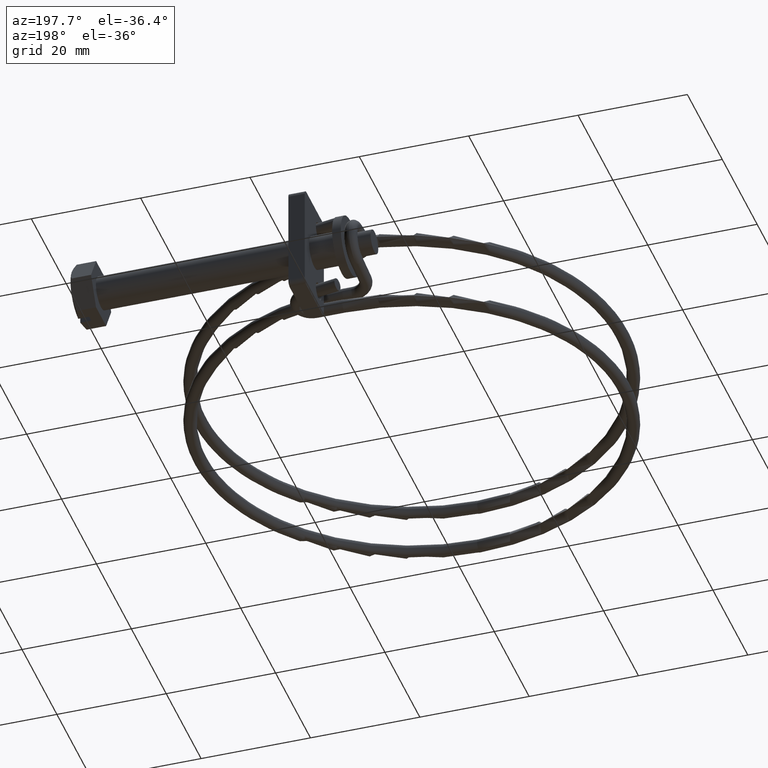
[diagram: clean part render]
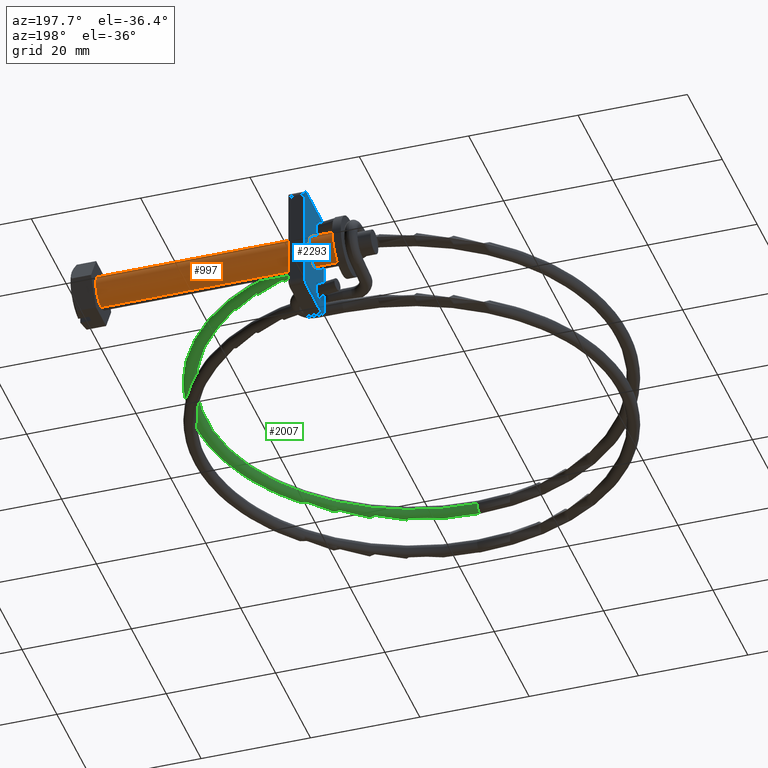
[diagram: same view with three faces highlighted in distinct colors, each labeled with its STEP entity id]
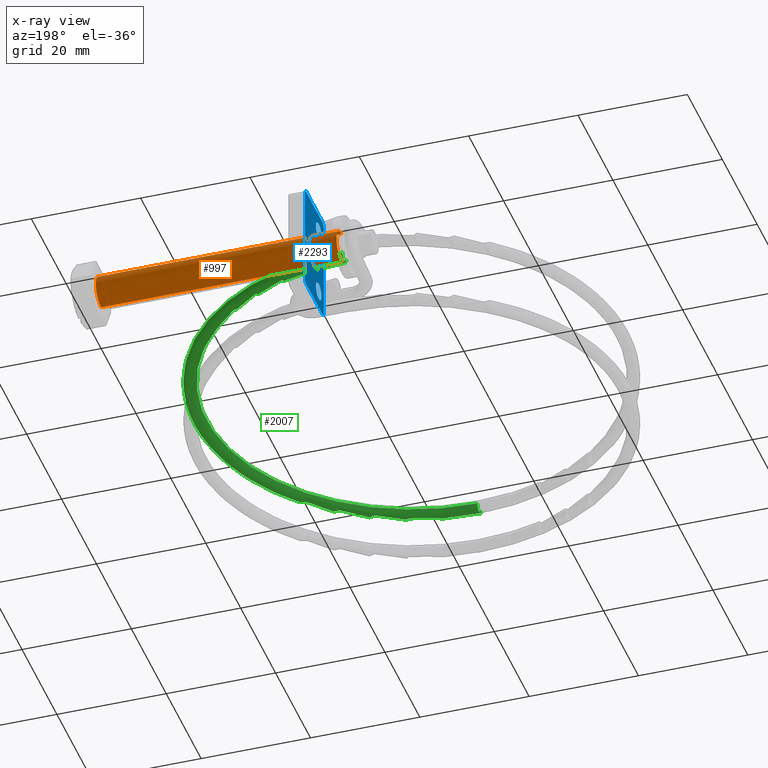
[diagram: x-ray of the same camera — body ghosted, the three highlighted faces saturated]
A machine part, auxiliary view with three faces highlighted in distinct colors.
The next image is the same camera in x-ray (body ghosted, the three faces saturated) — at least one of them is partly hidden behind the body in this view.
Their STEP definitions:

[orange] entity #997 — the highlighted cylindrical surface (edge-blend (fillet) strip) has radius 3 mm, axis along (1, 0, 0).
#4 = VERTEX_POINT ( 'NONE', #2601 ) ;
#38 = CARTESIAN_POINT ( 'NONE',  ( -44.00000000000000000, 3.673940397442060400E-016, 3.000000000000000400 ) ) ;
#106 = VERTEX_POINT ( 'NONE', #596 ) ;
#107 = DIRECTION ( 'NONE',  ( 1.000000000000000000, 0.0000000000000000000, 0.0000000000000000000 ) ) ;
#168 = VERTEX_POINT ( 'NONE', #1413 ) ;
#537 = CARTESIAN_POINT ( 'NONE',  ( -44.00000000000000000, 0.0000000000000000000, 0.0000000000000000000 ) ) ;
#570 = AXIS2_PLACEMENT_3D ( 'NONE', #2936, #2446, #2693 ) ;
#596 = CARTESIAN_POINT ( 'NONE',  ( 0.0000000000000000000, 3.673940397442060400E-016, 3.000000000000000400 ) ) ;
#776 = EDGE_CURVE ( 'NONE', #4, #1385, #1177, .T. ) ;
#782 = DIRECTION ( 'NONE',  ( 0.0000000000000000000, 0.0000000000000000000, 1.000000000000000000 ) ) ;
#798 = VECTOR ( 'NONE', #2555, 1000.000000000000000 ) ;
#813 = LINE ( 'NONE', #1339, #798 ) ;
#830 = VECTOR ( 'NONE', #1440, 1000.000000000000000 ) ;
#852 = CIRCLE ( 'NONE', #2660, 3.000000000000000400 ) ;
#944 = EDGE_CURVE ( 'NONE', #1385, #106, #813, .T. ) ;
#997 = ADVANCED_FACE ( 'NONE', ( #1152 ), #1698, .T. ) ;
#1152 = FACE_OUTER_BOUND ( 'NONE', #2119, .T. ) ;
#1177 = CIRCLE ( 'NONE', #2832, 3.000000000000000400 ) ;
#1339 = CARTESIAN_POINT ( 'NONE',  ( -44.00000000000000000, 3.673940397442060400E-016, 3.000000000000000400 ) ) ;
#1385 = VERTEX_POINT ( 'NONE', #38 ) ;
#1413 = CARTESIAN_POINT ( 'NONE',  ( 0.0000000000000000000, 0.0000000000000000000, -3.000000000000000400 ) ) ;
#1440 = DIRECTION ( 'NONE',  ( 1.000000000000000000, 0.0000000000000000000, 0.0000000000000000000 ) ) ;
#1447 = LINE ( 'NONE', #2898, #830 ) ;
#1541 = CARTESIAN_POINT ( 'NONE',  ( 0.0000000000000000000, 0.0000000000000000000, 0.0000000000000000000 ) ) ;
#1632 = ORIENTED_EDGE ( 'NONE', *, *, #2012, .F. ) ;
#1698 = CYLINDRICAL_SURFACE ( 'NONE', #570, 3.000000000000000400 ) ;
#1777 = DIRECTION ( 'NONE',  ( 0.0000000000000000000, 0.0000000000000000000, -1.000000000000000000 ) ) ;
#1874 = ORIENTED_EDGE ( 'NONE', *, *, #776, .T. ) ;
#1944 = ORIENTED_EDGE ( 'NONE', *, *, #3059, .F. ) ;
#2012 = EDGE_CURVE ( 'NONE', #4, #168, #1447, .T. ) ;
#2119 = EDGE_LOOP ( 'NONE', ( #1874, #2284, #1944, #1632 ) ) ;
#2218 = DIRECTION ( 'NONE',  ( 1.000000000000000000, -0.0000000000000000000, -0.0000000000000000000 ) ) ;
#2284 = ORIENTED_EDGE ( 'NONE', *, *, #944, .T. ) ;
#2446 = DIRECTION ( 'NONE',  ( 1.000000000000000000, 0.0000000000000000000, 0.0000000000000000000 ) ) ;
#2555 = DIRECTION ( 'NONE',  ( 1.000000000000000000, 0.0000000000000000000, 0.0000000000000000000 ) ) ;
#2601 = CARTESIAN_POINT ( 'NONE',  ( -44.00000000000000000, 0.0000000000000000000, -3.000000000000000400 ) ) ;
#2660 = AXIS2_PLACEMENT_3D ( 'NONE', #1541, #107, #1777 ) ;
#2693 = DIRECTION ( 'NONE',  ( 0.0000000000000000000, 0.0000000000000000000, -1.000000000000000000 ) ) ;
#2832 = AXIS2_PLACEMENT_3D ( 'NONE', #537, #2218, #782 ) ;
#2898 = CARTESIAN_POINT ( 'NONE',  ( -44.00000000000000000, 0.0000000000000000000, -3.000000000000000400 ) ) ;
#2936 = CARTESIAN_POINT ( 'NONE',  ( -44.00000000000000000, 0.0000000000000000000, 0.0000000000000000000 ) ) ;
#3059 = EDGE_CURVE ( 'NONE', #168, #106, #852, .T. ) ;

[blue] entity #2293 — the highlighted planar face has unit normal (1, 0, 0).
#27 = ORIENTED_EDGE ( 'NONE', *, *, #1421, .T. ) ;
#43 = VERTEX_POINT ( 'NONE', #1394 ) ;
#48 = CARTESIAN_POINT ( 'NONE',  ( -1.500000000000000000, -2.499999999999999100, -4.899999999999998600 ) ) ;
#64 = CARTESIAN_POINT ( 'NONE',  ( -1.500000000000000000, -2.499999999999999100, 4.899999999999999500 ) ) ;
#73 = ORIENTED_EDGE ( 'NONE', *, *, #601, .F. ) ;
#99 = DIRECTION ( 'NONE',  ( 0.0000000000000000000, 0.0000000000000000000, -1.000000000000000000 ) ) ;
#140 = CARTESIAN_POINT ( 'NONE',  ( -1.500000000000000000, 4.500000000000000000, -9.000000000000003600 ) ) ;
#148 = EDGE_CURVE ( 'NONE', #43, #622, #1555, .T. ) ;
#200 = AXIS2_PLACEMENT_3D ( 'NONE', #2855, #1397, #3098 ) ;
#207 = EDGE_CURVE ( 'NONE', #2409, #2331, #1455, .T. ) ;
#208 = EDGE_CURVE ( 'NONE', #2860, #1000, #261, .T. ) ;
#218 = DIRECTION ( 'NONE',  ( 0.0000000000000000000, 0.0000000000000000000, -1.000000000000000000 ) ) ;
#236 = DIRECTION ( 'NONE',  ( 0.0000000000000000000, 0.0000000000000000000, -1.000000000000000000 ) ) ;
#240 = FACE_BOUND ( 'NONE', #2893, .T. ) ;
#242 = CARTESIAN_POINT ( 'NONE',  ( -1.500000000000000000, -2.499999999999999100, -6.500000000000000000 ) ) ;
#261 = CIRCLE ( 'NONE', #2127, 1.599999999999999900 ) ;
#280 = LINE ( 'NONE', #1559, #365 ) ;
#297 = CARTESIAN_POINT ( 'NONE',  ( -1.500000000000000000, -2.499999999999999100, 8.099999999999999600 ) ) ;
#350 = ORIENTED_EDGE ( 'NONE', *, *, #208, .T. ) ;
#365 = VECTOR ( 'NONE', #2266, 1000.000000000000000 ) ;
#375 = AXIS2_PLACEMENT_3D ( 'NONE', #1857, #3089, #1636 ) ;
#377 = DIRECTION ( 'NONE',  ( 0.0000000000000000000, 0.0000000000000000000, -1.000000000000000000 ) ) ;
#381 = CARTESIAN_POINT ( 'NONE',  ( -1.500000000000000000, 0.0000000000000000000, -3.000000000000000400 ) ) ;
#430 = AXIS2_PLACEMENT_3D ( 'NONE', #3113, #1653, #218 ) ;
#478 = DIRECTION ( 'NONE',  ( 0.0000000000000000000, 0.0000000000000000000, -1.000000000000000000 ) ) ;
#482 = ORIENTED_EDGE ( 'NONE', *, *, #1832, .F. ) ;
#521 = AXIS2_PLACEMENT_3D ( 'NONE', #140, #1811, #377 ) ;
#544 = DIRECTION ( 'NONE',  ( 1.000000000000000000, 0.0000000000000000000, 0.0000000000000000000 ) ) ;
#601 = EDGE_CURVE ( 'NONE', #759, #2585, #2339, .T. ) ;
#618 = EDGE_CURVE ( 'NONE', #1439, #2331, #280, .T. ) ;
#622 = VERTEX_POINT ( 'NONE', #843 ) ;
#640 = DIRECTION ( 'NONE',  ( 1.000000000000000000, 0.0000000000000000000, 0.0000000000000000000 ) ) ;
#673 = DIRECTION ( 'NONE',  ( -0.0000000000000000000, 1.000000000000000000, -0.0000000000000000000 ) ) ;
#703 = CARTESIAN_POINT ( 'NONE',  ( -1.500000000000000000, -4.499999999999999100, -10.00000000000000000 ) ) ;
#759 = VERTEX_POINT ( 'NONE', #3116 ) ;
#770 = CARTESIAN_POINT ( 'NONE',  ( -1.500000000000000000, -4.499999999999999100, 10.00000000000000000 ) ) ;
#774 = CARTESIAN_POINT ( 'NONE',  ( -1.500000000000000000, 0.0000000000000000000, 0.0000000000000000000 ) ) ;
#788 = CARTESIAN_POINT ( 'NONE',  ( -1.500000000000000000, -5.500000000000000000, 9.000000000000001800 ) ) ;
#820 = VECTOR ( 'NONE', #673, 1000.000000000000000 ) ;
#843 = CARTESIAN_POINT ( 'NONE',  ( -1.500000000000000000, 4.500000000000000000, -10.00000000000000000 ) ) ;
#889 = FACE_BOUND ( 'NONE', #1558, .T. ) ;
#910 = PLANE ( 'NONE',  #375 ) ;
#914 = ORIENTED_EDGE ( 'NONE', *, *, #1324, .T. ) ;
#925 = CARTESIAN_POINT ( 'NONE',  ( -1.500000000000000000, -5.500000000000000000, -9.000000000000003600 ) ) ;
#931 = CIRCLE ( 'NONE', #1382, 1.599999999999999900 ) ;
#938 = EDGE_CURVE ( 'NONE', #1000, #2860, #1526, .T. ) ;
#967 = VERTEX_POINT ( 'NONE', #381 ) ;
#1000 = VERTEX_POINT ( 'NONE', #48 ) ;
#1024 = DIRECTION ( 'NONE',  ( 0.0000000000000000000, 0.0000000000000000000, -1.000000000000000000 ) ) ;
#1079 = ORIENTED_EDGE ( 'NONE', *, *, #2301, .T. ) ;
#1081 = CARTESIAN_POINT ( 'NONE',  ( -1.500000000000000000, 5.500000000000000000, 10.00000000000000000 ) ) ;
#1132 = ORIENTED_EDGE ( 'NONE', *, *, #148, .T. ) ;
#1197 = CIRCLE ( 'NONE', #2550, 3.000000000000000400 ) ;
#1200 = CARTESIAN_POINT ( 'NONE',  ( -1.500000000000000000, -4.499999999999999100, -9.000000000000001800 ) ) ;
#1274 = ORIENTED_EDGE ( 'NONE', *, *, #938, .T. ) ;
#1302 = ORIENTED_EDGE ( 'NONE', *, *, #1978, .T. ) ;
#1324 = EDGE_CURVE ( 'NONE', #759, #1686, #2261, .T. ) ;
#1329 = ORIENTED_EDGE ( 'NONE', *, *, #618, .F. ) ;
#1382 = AXIS2_PLACEMENT_3D ( 'NONE', #2076, #640, #2317 ) ;
#1394 = CARTESIAN_POINT ( 'NONE',  ( -1.500000000000000000, 5.500000000000000000, -9.000000000000003600 ) ) ;
#1397 = DIRECTION ( 'NONE',  ( -1.000000000000000000, -0.0000000000000000000, -0.0000000000000000000 ) ) ;
#1409 = VERTEX_POINT ( 'NONE', #297 ) ;
#1421 = EDGE_CURVE ( 'NONE', #2838, #967, #1197, .T. ) ;
#1432 = DIRECTION ( 'NONE',  ( 0.0000000000000000000, 0.0000000000000000000, -1.000000000000000000 ) ) ;
#1438 = CIRCLE ( 'NONE', #200, 1.000000000000000900 ) ;
#1439 = VERTEX_POINT ( 'NONE', #788 ) ;
#1441 = AXIS2_PLACEMENT_3D ( 'NONE', #2757, #1665, #236 ) ;
#1455 = CIRCLE ( 'NONE', #1965, 1.000000000000000900 ) ;
#1500 = VECTOR ( 'NONE', #2028, 1000.000000000000000 ) ;
#1526 = CIRCLE ( 'NONE', #2884, 1.599999999999999900 ) ;
#1555 = CIRCLE ( 'NONE', #521, 0.9999999999999991100 ) ;
#1558 = EDGE_LOOP ( 'NONE', ( #3057, #27 ) ) ;
#1559 = CARTESIAN_POINT ( 'NONE',  ( -1.500000000000000000, -5.500000000000000000, 10.00000000000000000 ) ) ;
#1589 = DIRECTION ( 'NONE',  ( 1.000000000000000000, 0.0000000000000000000, 0.0000000000000000000 ) ) ;
#1636 = DIRECTION ( 'NONE',  ( 0.0000000000000000000, 0.0000000000000000000, -1.000000000000000000 ) ) ;
#1653 = DIRECTION ( 'NONE',  ( -1.000000000000000000, -0.0000000000000000000, -0.0000000000000000000 ) ) ;
#1665 = DIRECTION ( 'NONE',  ( 1.000000000000000000, 0.0000000000000000000, 0.0000000000000000000 ) ) ;
#1686 = VERTEX_POINT ( 'NONE', #2984 ) ;
#1709 = EDGE_CURVE ( 'NONE', #967, #2838, #2537, .T. ) ;
#1755 = ORIENTED_EDGE ( 'NONE', *, *, #2294, .F. ) ;
#1811 = DIRECTION ( 'NONE',  ( -1.000000000000000000, -0.0000000000000000000, -0.0000000000000000000 ) ) ;
#1832 = EDGE_CURVE ( 'NONE', #43, #1686, #2128, .T. ) ;
#1857 = CARTESIAN_POINT ( 'NONE',  ( -1.500000000000000000, 0.0000000000000000000, 0.0000000000000000000 ) ) ;
#1908 = DIRECTION ( 'NONE',  ( 1.000000000000000000, 0.0000000000000000000, 0.0000000000000000000 ) ) ;
#1965 = AXIS2_PLACEMENT_3D ( 'NONE', #1200, #2892, #1432 ) ;
#1975 = CARTESIAN_POINT ( 'NONE',  ( -1.500000000000000000, 0.0000000000000000000, 0.0000000000000000000 ) ) ;
#1978 = EDGE_CURVE ( 'NONE', #3007, #1409, #2157, .T. ) ;
#2028 = DIRECTION ( 'NONE',  ( -0.0000000000000000000, -0.0000000000000000000, 1.000000000000000000 ) ) ;
#2076 = CARTESIAN_POINT ( 'NONE',  ( -1.500000000000000000, -2.499999999999999100, 6.500000000000000000 ) ) ;
#2082 = FACE_OUTER_BOUND ( 'NONE', #3051, .T. ) ;
#2112 = CARTESIAN_POINT ( 'NONE',  ( -1.500000000000000000, 5.500000000000000000, -10.00000000000000000 ) ) ;
#2114 = ORIENTED_EDGE ( 'NONE', *, *, #207, .T. ) ;
#2127 = AXIS2_PLACEMENT_3D ( 'NONE', #242, #1908, #478 ) ;
#2128 = LINE ( 'NONE', #2521, #1500 ) ;
#2136 = CARTESIAN_POINT ( 'NONE',  ( -1.500000000000000000, 3.673940397442060400E-016, 3.000000000000000400 ) ) ;
#2157 = CIRCLE ( 'NONE', #1441, 1.599999999999999900 ) ;
#2180 = VECTOR ( 'NONE', #2771, 1000.000000000000000 ) ;
#2212 = EDGE_CURVE ( 'NONE', #1409, #3007, #931, .T. ) ;
#2223 = DIRECTION ( 'NONE',  ( 0.0000000000000000000, 0.0000000000000000000, -1.000000000000000000 ) ) ;
#2261 = CIRCLE ( 'NONE', #430, 1.000000000000000900 ) ;
#2266 = DIRECTION ( 'NONE',  ( 0.0000000000000000000, 0.0000000000000000000, -1.000000000000000000 ) ) ;
#2293 = ADVANCED_FACE ( 'NONE', ( #889, #240, #2750, #2082 ), #910, .F. ) ;
#2294 = EDGE_CURVE ( 'NONE', #2409, #622, #2657, .T. ) ;
#2301 = EDGE_CURVE ( 'NONE', #1439, #2585, #1438, .T. ) ;
#2317 = DIRECTION ( 'NONE',  ( 0.0000000000000000000, 0.0000000000000000000, -1.000000000000000000 ) ) ;
#2331 = VERTEX_POINT ( 'NONE', #925 ) ;
#2339 = LINE ( 'NONE', #1081, #2180 ) ;
#2409 = VERTEX_POINT ( 'NONE', #703 ) ;
#2462 = DIRECTION ( 'NONE',  ( 1.000000000000000000, 0.0000000000000000000, 0.0000000000000000000 ) ) ;
#2521 = CARTESIAN_POINT ( 'NONE',  ( -1.500000000000000000, 5.500000000000000000, 10.00000000000000000 ) ) ;
#2537 = CIRCLE ( 'NONE', #2641, 3.000000000000000400 ) ;
#2550 = AXIS2_PLACEMENT_3D ( 'NONE', #1975, #544, #2223 ) ;
#2585 = VERTEX_POINT ( 'NONE', #770 ) ;
#2641 = AXIS2_PLACEMENT_3D ( 'NONE', #774, #2462, #1024 ) ;
#2643 = CARTESIAN_POINT ( 'NONE',  ( -1.500000000000000000, -2.499999999999999100, -8.099999999999999600 ) ) ;
#2657 = LINE ( 'NONE', #2112, #820 ) ;
#2750 = FACE_BOUND ( 'NONE', #3002, .T. ) ;
#2757 = CARTESIAN_POINT ( 'NONE',  ( -1.500000000000000000, -2.499999999999999100, 6.500000000000000000 ) ) ;
#2771 = DIRECTION ( 'NONE',  ( 0.0000000000000000000, -1.000000000000000000, 0.0000000000000000000 ) ) ;
#2809 = ORIENTED_EDGE ( 'NONE', *, *, #2212, .T. ) ;
#2838 = VERTEX_POINT ( 'NONE', #2136 ) ;
#2855 = CARTESIAN_POINT ( 'NONE',  ( -1.500000000000000000, -4.500000000000000000, 9.000000000000001800 ) ) ;
#2860 = VERTEX_POINT ( 'NONE', #2643 ) ;
#2884 = AXIS2_PLACEMENT_3D ( 'NONE', #3038, #1589, #99 ) ;
#2892 = DIRECTION ( 'NONE',  ( -1.000000000000000000, -0.0000000000000000000, -0.0000000000000000000 ) ) ;
#2893 = EDGE_LOOP ( 'NONE', ( #350, #1274 ) ) ;
#2984 = CARTESIAN_POINT ( 'NONE',  ( -1.500000000000000000, 5.500000000000000000, 9.000000000000001800 ) ) ;
#3002 = EDGE_LOOP ( 'NONE', ( #1302, #2809 ) ) ;
#3007 = VERTEX_POINT ( 'NONE', #64 ) ;
#3038 = CARTESIAN_POINT ( 'NONE',  ( -1.500000000000000000, -2.499999999999999100, -6.500000000000000000 ) ) ;
#3051 = EDGE_LOOP ( 'NONE', ( #1755, #2114, #1329, #1079, #73, #914, #482, #1132 ) ) ;
#3057 = ORIENTED_EDGE ( 'NONE', *, *, #1709, .T. ) ;
#3089 = DIRECTION ( 'NONE',  ( 1.000000000000000000, 0.0000000000000000000, 0.0000000000000000000 ) ) ;
#3098 = DIRECTION ( 'NONE',  ( 0.0000000000000000000, 0.0000000000000000000, -1.000000000000000000 ) ) ;
#3113 = CARTESIAN_POINT ( 'NONE',  ( -1.500000000000000000, 4.500000000000000000, 9.000000000000001800 ) ) ;
#3116 = CARTESIAN_POINT ( 'NONE',  ( -1.500000000000000000, 4.500000000000000000, 10.00000000000000000 ) ) ;

[green] entity #2007 — the highlighted toroidal blend (fillet) surface has major radius 38.65 mm and minor (blend) radius 1.15 mm.
#79 = EDGE_CURVE ( 'NONE', #744, #2029, #134, .T. ) ;
#134 = CIRCLE ( 'NONE', #326, 1.149999999999995500 ) ;
#165 = AXIS2_PLACEMENT_3D ( 'NONE', #1987, #558, #2239 ) ;
#326 = AXIS2_PLACEMENT_3D ( 'NONE', #2263, #829, #2528 ) ;
#364 = VERTEX_POINT ( 'NONE', #1599 ) ;
#515 = CIRCLE ( 'NONE', #165, 1.149999999999995500 ) ;
#536 = DIRECTION ( 'NONE',  ( 1.000000000000000000, 1.476770095099055900E-014, -1.207367539279857700E-015 ) ) ;
#558 = DIRECTION ( 'NONE',  ( -1.000000000000000000, -1.489016563090529400E-014, -1.207367539279857700E-015 ) ) ;
#616 = CIRCLE ( 'NONE', #2013, 37.50000000000000000 ) ;
#714 = EDGE_CURVE ( 'NONE', #364, #828, #616, .T. ) ;
#716 = DIRECTION ( 'NONE',  ( -0.0000000000000000000, -0.0000000000000000000, -1.000000000000000000 ) ) ;
#744 = VERTEX_POINT ( 'NONE', #2120 ) ;
#828 = VERTEX_POINT ( 'NONE', #1283 ) ;
#829 = DIRECTION ( 'NONE',  ( -1.000000000000000000, -1.489016563090529400E-014, -1.207367539279857700E-015 ) ) ;
#858 = CIRCLE ( 'NONE', #2006, 39.79999999999999700 ) ;
#873 = VERTEX_POINT ( 'NONE', #2782 ) ;
#896 = ORIENTED_EDGE ( 'NONE', *, *, #2287, .T. ) ;
#958 = CIRCLE ( 'NONE', #3025, 1.149999999999999700 ) ;
#1111 = EDGE_CURVE ( 'NONE', #873, #2029, #858, .T. ) ;
#1154 = CARTESIAN_POINT ( 'NONE',  ( 4.795900000000000500, -7.911643725490995000, 4.200000000000001100 ) ) ;
#1172 = DIRECTION ( 'NONE',  ( -0.0000000000000000000, -0.0000000000000000000, -1.000000000000000000 ) ) ;
#1251 = CARTESIAN_POINT ( 'NONE',  ( 4.795899999999999600, -46.56164372549099500, 4.200000000000001100 ) ) ;
#1254 = ORIENTED_EDGE ( 'NONE', *, *, #1757, .F. ) ;
#1256 = CARTESIAN_POINT ( 'NONE',  ( 4.795899999999998700, -7.911643725490995000, 3.050000000000001600 ) ) ;
#1283 = CARTESIAN_POINT ( 'NONE',  ( 4.795899999999985400, -84.06164372549099500, 4.200000000000001100 ) ) ;
#1386 = DIRECTION ( 'NONE',  ( -1.508455196501571800E-014, 0.9945218953682732900, -0.1045284632676540700 ) ) ;
#1491 = DIRECTION ( 'NONE',  ( -1.000000000000000000, 0.0000000000000000000, 0.0000000000000000000 ) ) ;
#1599 = CARTESIAN_POINT ( 'NONE',  ( 4.795900000000018300, -9.061643725490995400, 4.200000000000001100 ) ) ;
#1652 = ORIENTED_EDGE ( 'NONE', *, *, #2117, .T. ) ;
#1757 = EDGE_CURVE ( 'NONE', #828, #744, #515, .T. ) ;
#1780 = EDGE_LOOP ( 'NONE', ( #1652, #2407, #2672, #1254, #2001, #896 ) ) ;
#1781 = AXIS2_PLACEMENT_3D ( 'NONE', #2148, #716, #2400 ) ;
#1801 = CIRCLE ( 'NONE', #3078, 1.149999999999999700 ) ;
#1916 = CARTESIAN_POINT ( 'NONE',  ( 4.795900000000019100, -86.36164372549099300, 4.200000000000001100 ) ) ;
#1966 = CARTESIAN_POINT ( 'NONE',  ( 4.795900000000000500, -7.911643725490995000, 4.200000000000001100 ) ) ;
#1987 = CARTESIAN_POINT ( 'NONE',  ( 4.795900000000003200, -85.21164372549098700, 4.200000000000001100 ) ) ;
#2001 = ORIENTED_EDGE ( 'NONE', *, *, #714, .F. ) ;
#2006 = AXIS2_PLACEMENT_3D ( 'NONE', #1251, #2945, #1491 ) ;
#2007 = ADVANCED_FACE ( 'NONE', ( #2765 ), #2092, .T. ) ;
#2013 = AXIS2_PLACEMENT_3D ( 'NONE', #2622, #1172, #2866 ) ;
#2029 = VERTEX_POINT ( 'NONE', #1916 ) ;
#2092 = TOROIDAL_SURFACE ( 'NONE', #1781, 38.64999999999999900, 1.149999999999999900 ) ;
#2117 = EDGE_CURVE ( 'NONE', #2582, #873, #1801, .T. ) ;
#2120 = CARTESIAN_POINT ( 'NONE',  ( 4.795900000000020000, -86.36111266539437300, 4.165054954608373300 ) ) ;
#2148 = CARTESIAN_POINT ( 'NONE',  ( 4.795899999999999600, -46.56164372549099500, 4.200000000000001100 ) ) ;
#2217 = DIRECTION ( 'NONE',  ( -1.508455196501571800E-014, 0.9945218953682732900, -0.1045284632676540700 ) ) ;
#2239 = DIRECTION ( 'NONE',  ( 1.508455196501577500E-014, -0.9945218953682732900, -0.1045284632676544400 ) ) ;
#2263 = CARTESIAN_POINT ( 'NONE',  ( 4.795900000000003200, -85.21164372549098700, 4.200000000000001100 ) ) ;
#2287 = EDGE_CURVE ( 'NONE', #364, #2582, #958, .T. ) ;
#2400 = DIRECTION ( 'NONE',  ( -1.000000000000000000, 0.0000000000000000000, 0.0000000000000000000 ) ) ;
#2407 = ORIENTED_EDGE ( 'NONE', *, *, #1111, .T. ) ;
#2528 = DIRECTION ( 'NONE',  ( 1.508455196501577500E-014, -0.9945218953682732900, -0.1045284632676544400 ) ) ;
#2582 = VERTEX_POINT ( 'NONE', #1256 ) ;
#2622 = CARTESIAN_POINT ( 'NONE',  ( 4.795899999999999600, -46.56164372549099500, 4.200000000000001100 ) ) ;
#2672 = ORIENTED_EDGE ( 'NONE', *, *, #79, .F. ) ;
#2765 = FACE_OUTER_BOUND ( 'NONE', #1780, .T. ) ;
#2782 = CARTESIAN_POINT ( 'NONE',  ( 4.795899999999982700, -6.761643725490996500, 4.200000000000001100 ) ) ;
#2846 = DIRECTION ( 'NONE',  ( 1.000000000000000000, 1.476770095099055900E-014, -1.207367539279857700E-015 ) ) ;
#2866 = DIRECTION ( 'NONE',  ( -1.000000000000000000, 0.0000000000000000000, 0.0000000000000000000 ) ) ;
#2945 = DIRECTION ( 'NONE',  ( -0.0000000000000000000, -0.0000000000000000000, -1.000000000000000000 ) ) ;
#3025 = AXIS2_PLACEMENT_3D ( 'NONE', #1154, #2846, #1386 ) ;
#3078 = AXIS2_PLACEMENT_3D ( 'NONE', #1966, #536, #2217 ) ;